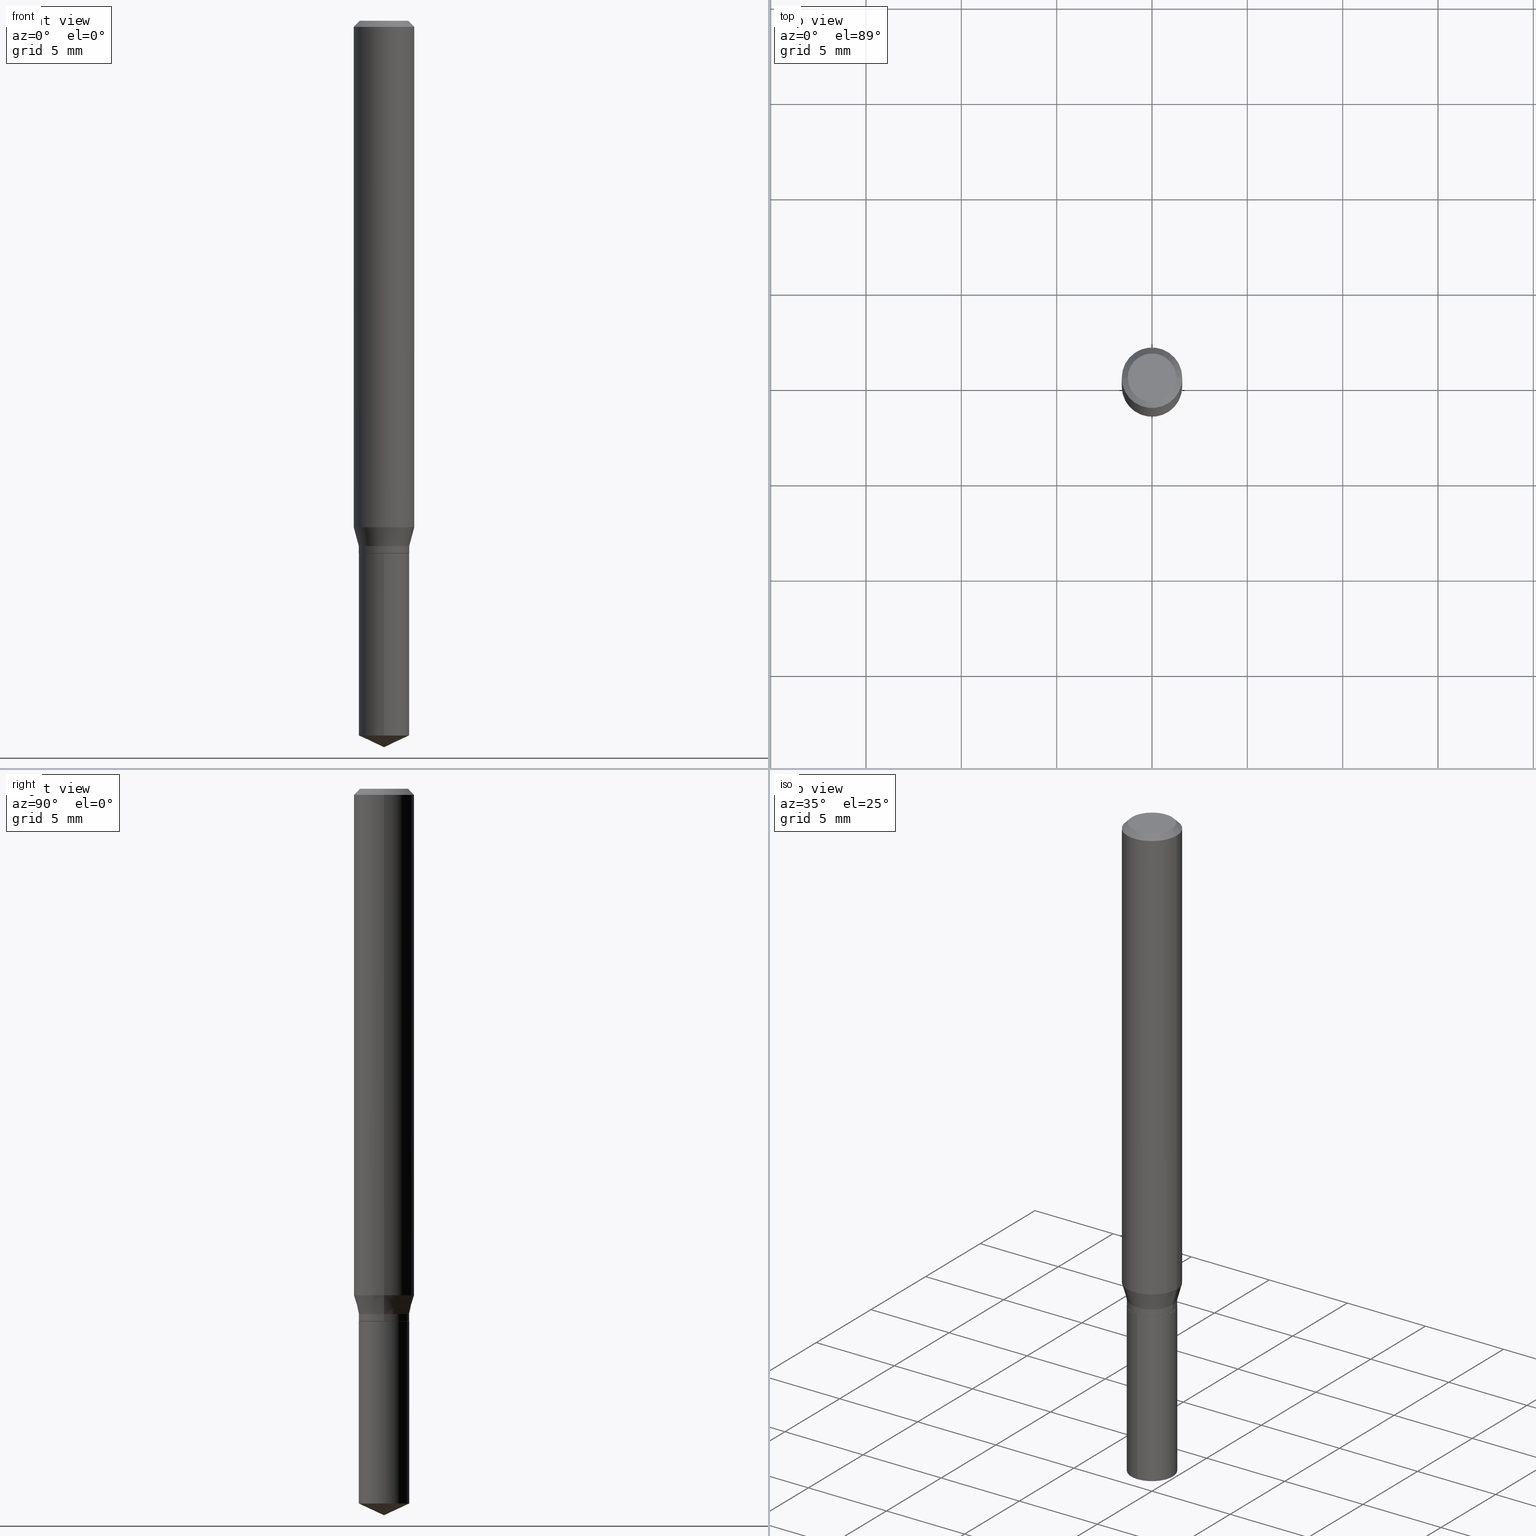
[diagram: canonical four-view strip — front | top / right | iso, engineering-drawing reading convention]
A machine part, canonical four-view strip (front | top / right | iso — engineering-drawing reading convention). The complete STEP part file that produces these views, byte-faithful:
ISO-10303-21;
HEADER;
FILE_DESCRIPTION (( 'STEP AP203' ),
    '1' );
FILE_NAME ('07213.STEP',
    '2024-04-23T20:01:57',
    ( '' ),
    ( '' ),
    'SwSTEP 2.0',
    'SolidWorks 2023',
    '' );
FILE_SCHEMA (( 'CONFIG_CONTROL_DESIGN' ));
ENDSEC;

DATA;
#1 = DIRECTION ( 'NONE',  ( 1.000000000000000000, -6.982962677686268288E-15, 0.000000000000000000 ) ) ;
#2 = ORIENTED_EDGE ( 'NONE', *, *, #466, .T. ) ;
#3 = AXIS2_PLACEMENT_3D ( 'NONE', #196, #379, #6 ) ;
#4 = CC_DESIGN_APPROVAL ( #225, ( #401 ) ) ;
#5 = DIRECTION ( 'NONE',  ( -2.445399690415121530E-29, 3.491580316559632610E-15, 1.000000000000000000 ) ) ;
#6 = DIRECTION ( 'NONE',  ( -6.982962677686266711E-15, -1.000000000000000000, 2.619221470435534958E-15 ) ) ;
#7 = ORIENTED_EDGE ( 'NONE', *, *, #354, .T. ) ;
#8 = CARTESIAN_POINT ( 'NONE',  ( 3.608708469328962837E-29, -5.152353543440113099E-15, -1.475682055627217215 ) ) ;
#9 = EDGE_CURVE ( 'NONE', #467, #231, #50, .T. ) ;
#10 = AXIS2_PLACEMENT_3D ( 'NONE', #443, #339, #481 ) ;
#11 = AXIS2_PLACEMENT_3D ( 'NONE', #322, #168, #15 ) ;
#12 = ORIENTED_EDGE ( 'NONE', *, *, #273, .T. ) ;
#13 = EDGE_LOOP ( 'NONE', ( #95, #93, #461, #59 ) ) ;
#14 = EDGE_CURVE ( 'NONE', #307, #299, #233, .T. ) ;
#15 = DIRECTION ( 'NONE',  ( -1.000000000000000000, 6.982962677686265922E-15, -4.876176775795935793E-29 ) ) ;
#16 = ORIENTED_EDGE ( 'NONE', *, *, #158, .T. ) ;
#17 = VECTOR ( 'NONE', #261, 39.37007874015748854 ) ;
#18 = AXIS2_PLACEMENT_3D ( 'NONE', #325, #124, #317 ) ;
#19 = ORIENTED_EDGE ( 'NONE', *, *, #347, .F. ) ;
#20 = CARTESIAN_POINT ( 'NONE',  ( 2.651866373427162025E-29, -3.786162363841507612E-15, -1.084400000000000031 ) ) ;
#21 = ORIENTED_EDGE ( 'NONE', *, *, #383, .T. ) ;
#22 = PERSON_AND_ORGANIZATION_ROLE ( 'design_supplier' ) ;
#23 = LINE ( 'NONE', #289, #57 ) ;
#24 = ADVANCED_FACE ( 'NONE', ( #315 ), #400, .T. ) ;
#25 = VECTOR ( 'NONE', #425, 39.37007874015748143 ) ;
#26 = DIRECTION ( 'NONE',  ( 1.000000000000000000, -6.982962677686266711E-15, 4.876176775795935793E-29 ) ) ;
#27 = APPROVAL_STATUS ( 'not_yet_approved' ) ;
#28 = FACE_OUTER_BOUND ( 'NONE', #201, .T. ) ;
#29 = PERSON_AND_ORGANIZATION ( #205, #456 ) ;
#30 = CARTESIAN_POINT ( 'NONE',  ( 2.690015686803650369E-29, -3.840629472727460101E-15, -1.100000000000000089 ) ) ;
#31 = COORDINATED_UNIVERSAL_TIME_OFFSET ( 5, 0, .BEHIND. ) ;
#32 = ADVANCED_FACE ( 'NONE', ( #130 ), #210, .T. ) ;
#33 = CARTESIAN_POINT ( 'NONE',  ( 0.000000000000000000, 0.000000000000000000, 0.000000000000000000 ) ) ;
#34 = LOCAL_TIME ( 16, 1, 57.00000000000000000, #31 ) ;
#35 = DIRECTION ( 'NONE',  ( -2.445468806185136597E-29, 3.491481338843145583E-15, 1.000000000000000000 ) ) ;
#36 = CARTESIAN_POINT ( 'NONE',  ( 2.688792952400557567E-29, -3.838883732058038598E-15, -1.099499999999999922 ) ) ;
#37 = ORIENTED_EDGE ( 'NONE', *, *, #313, .T. ) ;
#38 = APPROVAL ( #331, 'UNSPECIFIED' ) ;
#39 = CARTESIAN_POINT ( 'NONE',  ( 0.000000000000000000, 0.000000000000000000, 0.000000000000000000 ) ) ;
#40 = ORIENTED_EDGE ( 'NONE', *, *, #398, .F. ) ;
#41 = CIRCLE ( 'NONE', #418, 0.05215000000000000191 ) ;
#42 = DIRECTION ( 'NONE',  ( 1.000000000000000000, -6.982962677686266711E-15, 0.000000000000000000 ) ) ;
#43 = ORIENTED_EDGE ( 'NONE', *, *, #341, .T. ) ;
#44 = CARTESIAN_POINT ( 'NONE',  ( -3.641615036413025703E-16, -0.05215000000000513669, -1.475682055627216993 ) ) ;
#45 = ORIENTED_EDGE ( 'NONE', *, *, #369, .T. ) ;
#46 = CC_DESIGN_PERSON_AND_ORGANIZATION_ASSIGNMENT ( #403, #22, ( #401 ) ) ;
#47 = CARTESIAN_POINT ( 'NONE',  ( 2.651866373427162025E-29, -3.786162363841507612E-15, -1.084400000000000031 ) ) ;
#48 = AXIS2_PLACEMENT_3D ( 'NONE', #150, #476, #297 ) ;
#49 = CIRCLE ( 'NONE', #241, 0.06250000000000000000 ) ;
#50 = CIRCLE ( 'NONE', #393, 0.05215000000000000191 ) ;
#51 = FACE_OUTER_BOUND ( 'NONE', #243, .T. ) ;
#52 = CARTESIAN_POINT ( 'NONE',  ( -9.260740279983036507E-28, 1.322265303911854087E-13, 37.87007874015748143 ) ) ;
#53 = EDGE_CURVE ( 'NONE', #382, #169, #300, .T. ) ;
#54 = LINE ( 'NONE', #465, #338 ) ;
#55 = EDGE_LOOP ( 'NONE', ( #343, #177 ) ) ;
#56 = EDGE_LOOP ( 'NONE', ( #80, #396 ) ) ;
#57 = VECTOR ( 'NONE', #368, 39.37007874015748143 ) ;
#58 = LINE ( 'NONE', #89, #25 ) ;
#59 = ORIENTED_EDGE ( 'NONE', *, *, #327, .F. ) ;
#60 = DIRECTION ( 'NONE',  ( 0.000000000000000000, 0.000000000000000000, 1.000000000000000000 ) ) ;
#61 = EDGE_CURVE ( 'NONE', #125, #115, #479, .T. ) ;
#62 = CARTESIAN_POINT ( 'NONE',  ( 3.056836007731442729E-31, -4.364351673553962300E-17, -0.01250000000000008916 ) ) ;
#63 = PERSON_AND_ORGANIZATION ( #205, #456 ) ;
#64 = PRODUCT_RELATED_PRODUCT_CATEGORY ( 'detail', '', ( #324 ) ) ;
#65 = FACE_OUTER_BOUND ( 'NONE', #429, .T. ) ;
#66 = DATE_TIME_ROLE ( 'creation_date' ) ;
#67 = LOCAL_TIME ( 16, 1, 57.00000000000000000, #472 ) ;
#68 = CARTESIAN_POINT ( 'NONE',  ( 0.06250000000000000000, -4.800786840909313294E-16, -0.01250000000000008916 ) ) ;
#69 = EDGE_CURVE ( 'NONE', #121, #135, #334, .T. ) ;
#70 = MECHANICAL_CONTEXT ( 'NONE', #321, 'mechanical' ) ;
#71 = DIRECTION ( 'NONE',  ( 1.000000000000000000, -6.982962677686266711E-15, 4.876176775795935793E-29 ) ) ;
#72 = CALENDAR_DATE ( 2024, 23, 4 ) ;
#73 = CARTESIAN_POINT ( 'NONE',  ( -0.05215000000000000191, -3.415614327142614760E-15, -1.084400000000000031 ) ) ;
#74 = AXIS2_PLACEMENT_3D ( 'NONE', #287, #367, #71 ) ;
#75 = DIRECTION ( 'NONE',  ( -6.982962677686266711E-15, -1.000000000000000000, 5.238442940871069917E-15 ) ) ;
#76 = ADVANCED_FACE ( 'NONE', ( #371 ), #409, .T. ) ;
#77 = CARTESIAN_POINT ( 'NONE',  ( 3.608708469328962837E-29, -5.152353543440113099E-15, -1.475682055627217215 ) ) ;
#78 = ORIENTED_EDGE ( 'NONE', *, *, #347, .T. ) ;
#79 = DIRECTION ( 'NONE',  ( 1.000000000000000000, -6.982962677686266711E-15, 4.876176775795935793E-29 ) ) ;
#80 = ORIENTED_EDGE ( 'NONE', *, *, #207, .T. ) ;
#81 = DIRECTION ( 'NONE',  ( -6.328713451373382000E-15, -0.9063077870366501587, 0.4226182617406989972 ) ) ;
#82 = VECTOR ( 'NONE', #191, 39.37007874015748143 ) ;
#83 = ORIENTED_EDGE ( 'NONE', *, *, #61, .T. ) ;
#84 = CIRCLE ( 'NONE', #384, 0.04999999999999999584 ) ;
#85 = ADVANCED_FACE ( 'NONE', ( #487 ), #485, .T. ) ;
#86 = CARTESIAN_POINT ( 'NONE',  ( 3.705480366989283509E-16, 0.05214999999999615776, -1.100000000000000089 ) ) ;
#87 = ORIENTED_EDGE ( 'NONE', *, *, #490, .T. ) ;
#88 =( CONVERSION_BASED_UNIT ( 'INCH', #239 ) LENGTH_UNIT ( ) NAMED_UNIT ( #290 ) );
#89 = CARTESIAN_POINT ( 'NONE',  ( 0.06250000000000000000, -4.724246415962603826E-16, -0.01250000000000008916 ) ) ;
#90 = DIRECTION ( 'NONE',  ( -2.445468806185136597E-29, 3.491481338843145583E-15, 1.000000000000000000 ) ) ;
#91 = VECTOR ( 'NONE', #142, 39.37007874015748143 ) ;
#92 =( LENGTH_UNIT ( ) NAMED_UNIT ( * ) SI_UNIT ( $, .METRE. ) );
#93 = ORIENTED_EDGE ( 'NONE', *, *, #153, .T. ) ;
#94 = DIRECTION ( 'NONE',  ( 0.2588190451025216277, 1.565188264969619995E-15, 0.9659258262890679791 ) ) ;
#95 = ORIENTED_EDGE ( 'NONE', *, *, #364, .T. ) ;
#96 = EDGE_LOOP ( 'NONE', ( #229, #209, #351, #21 ) ) ;
#97 = ADVANCED_BREP_SHAPE_REPRESENTATION ( '07213', ( #468, #477, #114 ), #264 ) ;
#98 = VECTOR ( 'NONE', #408, 39.37007874015748143 ) ;
#99 = CC_DESIGN_SECURITY_CLASSIFICATION ( #413, ( #401 ) ) ;
#100 = COORDINATED_UNIVERSAL_TIME_OFFSET ( 5, 0, .BEHIND. ) ;
#101 = ORIENTED_EDGE ( 'NONE', *, *, #53, .T. ) ;
#102 = APPROVAL_ROLE ( '' ) ;
#103 = PLANE ( 'NONE',  #137 ) ;
#104 = ADVANCED_FACE ( 'NONE', ( #372 ), #474, .T. ) ;
#105 = LINE ( 'NONE', #296, #180 ) ;
#106 = CIRCLE ( 'NONE', #475, 0.05215000000000000191 ) ;
#107 = DIRECTION ( 'NONE',  ( -1.000000000000000000, 6.982962677686266711E-15, 0.000000000000000000 ) ) ;
#108 = EDGE_CURVE ( 'NONE', #231, #420, #217, .T. ) ;
#109 = PERSON_AND_ORGANIZATION ( #205, #456 ) ;
#110 = CARTESIAN_POINT ( 'NONE',  ( 0.000000000000000000, 0.000000000000000000, 0.000000000000000000 ) ) ;
#111 = CARTESIAN_POINT ( 'NONE',  ( 2.690015686803650369E-29, -3.840629472727460101E-15, -1.100000000000000089 ) ) ;
#112 = ADVANCED_FACE ( 'NONE', ( #28 ), #318, .T. ) ;
#113 = CARTESIAN_POINT ( 'NONE',  ( 3.668099535622682155E-29, -5.237370474839448718E-15, -1.500000000000000222 ) ) ;
#114 = AXIS2_PLACEMENT_3D ( 'NONE', #187, #60, #260 ) ;
#115 = VERTEX_POINT ( 'NONE', #258 ) ;
#116 = CARTESIAN_POINT ( 'NONE',  ( 2.690015686803650369E-29, -3.840629472727460101E-15, -1.100000000000000089 ) ) ;
#117 = DIRECTION ( 'NONE',  ( -2.445399690415121530E-29, 3.491580316559632610E-15, 1.000000000000000000 ) ) ;
#118 = ADVANCED_FACE ( 'NONE', ( #65 ), #441, .T. ) ;
#119 = CARTESIAN_POINT ( 'NONE',  ( 0.05215000000000000191, -3.641615036413388086E-16, 2.542926188577580569E-30 ) ) ;
#120 = CIRCLE ( 'NONE', #308, 0.05215000000000000191 ) ;
#121 = VERTEX_POINT ( 'NONE', #406 ) ;
#122 = LOCAL_TIME ( 16, 1, 57.00000000000000000, #373 ) ;
#123 = EDGE_CURVE ( 'NONE', #422, #307, #179, .T. ) ;
#124 = DIRECTION ( 'NONE',  ( -2.445468806185136597E-29, 3.491481338843145583E-15, 1.000000000000000000 ) ) ;
#125 = VERTEX_POINT ( 'NONE', #444 ) ;
#126 = DIRECTION ( 'NONE',  ( -1.000000000000000000, 6.982962677686266711E-15, 0.000000000000000000 ) ) ;
#127 = EDGE_LOOP ( 'NONE', ( #312, #237, #152, #238 ) ) ;
#128 = CC_DESIGN_PERSON_AND_ORGANIZATION_ASSIGNMENT ( #248, #482, ( #401 ) ) ;
#129 = CARTESIAN_POINT ( 'NONE',  ( 3.056836007731442729E-31, -4.364351673553962300E-17, -0.01250000000000008916 ) ) ;
#130 = FACE_OUTER_BOUND ( 'NONE', #454, .T. ) ;
#131 = CONICAL_SURFACE ( 'NONE', #257, 0.05215000000000000191, 0.2617993877991502960 ) ;
#132 = DIRECTION ( 'NONE',  ( -2.445468806185136597E-29, 3.491481338843145583E-15, 1.000000000000000000 ) ) ;
#133 = EDGE_LOOP ( 'NONE', ( #427, #12, #7, #323 ) ) ;
#134 = CARTESIAN_POINT ( 'NONE',  ( 2.557405920255531666E-29, -3.651297871326509428E-15, -1.045773274141661879 ) ) ;
#135 = VERTEX_POINT ( 'NONE', #68 ) ;
#136 = ORIENTED_EDGE ( 'NONE', *, *, #292, .F. ) ;
#137 = AXIS2_PLACEMENT_3D ( 'NONE', #184, #332, #149 ) ;
#138 = VECTOR ( 'NONE', #263, 39.37007874015748143 ) ;
#139 = CARTESIAN_POINT ( 'NONE',  ( 3.705480366989190325E-16, 0.05214999999999615776, -1.100000000000000089 ) ) ;
#140 = ADVANCED_FACE ( 'NONE', ( #436 ), #186, .T. ) ;
#141 = CALENDAR_DATE ( 2024, 23, 4 ) ;
#142 = DIRECTION ( 'NONE',  ( -2.445468806185136877E-29, 3.491481338843145188E-15, 1.000000000000000000 ) ) ;
#143 = UNCERTAINTY_MEASURE_WITH_UNIT (LENGTH_MEASURE( 1.000000000000000082E-05 ), #88, 'distance_accuracy_value', 'NONE');
#144 = CARTESIAN_POINT ( 'NONE',  ( 0.06250000000000006939, -4.364351673553921624E-16, 3.047610484872463374E-30 ) ) ;
#145 = AXIS2_PLACEMENT_3D ( 'NONE', #432, #90, #394 ) ;
#146 = CALENDAR_DATE ( 2024, 23, 4 ) ;
#147 = CC_DESIGN_APPROVAL ( #386, ( #316 ) ) ;
#148 = CONICAL_SURFACE ( 'NONE', #18, 0.05164999999999999453, 0.7853981633974141952 ) ;
#149 = DIRECTION ( 'NONE',  ( 6.982962677686265922E-15, 1.000000000000000000, -3.491580316559632610E-15 ) ) ;
#150 = CARTESIAN_POINT ( 'NONE',  ( 2.690015686803650369E-29, -3.840629472727460101E-15, -1.100000000000000089 ) ) ;
#151 = CARTESIAN_POINT ( 'NONE',  ( -0.05164999999999999453, -3.473634149707368542E-15, -1.100000000000000089 ) ) ;
#152 = ORIENTED_EDGE ( 'NONE', *, *, #410, .F. ) ;
#153 = EDGE_CURVE ( 'NONE', #167, #231, #23, .T. ) ;
#154 = AXIS2_PLACEMENT_3D ( 'NONE', #298, #306, #414 ) ;
#155 = CARTESIAN_POINT ( 'NONE',  ( 2.690015686803650369E-29, -3.840629472727460101E-15, -1.100000000000000089 ) ) ;
#156 = VECTOR ( 'NONE', #234, 39.37007874015748143 ) ;
#157 = ORIENTED_EDGE ( 'NONE', *, *, #69, .T. ) ;
#158 = EDGE_CURVE ( 'NONE', #458, #125, #163, .T. ) ;
#159 = CARTESIAN_POINT ( 'NONE',  ( 3.668099535622682715E-29, -5.237370474839449507E-15, -1.500000000000000222 ) ) ;
#160 = DIRECTION ( 'NONE',  ( -2.445399690415121530E-29, 3.491580316559632610E-15, 1.000000000000000000 ) ) ;
#161 = ORIENTED_EDGE ( 'NONE', *, *, #108, .F. ) ;
#162 = DIRECTION ( 'NONE',  ( -2.445468806185136597E-29, 3.491481338843145583E-15, 1.000000000000000000 ) ) ;
#163 = CIRCLE ( 'NONE', #337, 0.05164999999999999453 ) ;
#164 = ORIENTED_EDGE ( 'NONE', *, *, #216, .T. ) ;
#165 = VECTOR ( 'NONE', #345, 39.37007874015748854 ) ;
#166 = DIRECTION ( 'NONE',  ( 1.000000000000000000, -6.982962677686266711E-15, 0.000000000000000000 ) ) ;
#167 = VERTEX_POINT ( 'NONE', #405 ) ;
#168 = DIRECTION ( 'NONE',  ( 2.438088387897960049E-29, -3.491481338843145188E-15, -1.000000000000000000 ) ) ;
#169 = VERTEX_POINT ( 'NONE', #188 ) ;
#170 = DIRECTION ( 'NONE',  ( -2.445468806185136597E-29, 3.491481338843145583E-15, 1.000000000000000000 ) ) ;
#171 = DIRECTION ( 'NONE',  ( -2.445399690415121530E-29, 3.491580316559632610E-15, 1.000000000000000000 ) ) ;
#172 = AXIS2_PLACEMENT_3D ( 'NONE', #155, #303, #389 ) ;
#173 = ADVANCED_FACE ( 'NONE', ( #336 ), #103, .F. ) ;
#174 = ORIENTED_EDGE ( 'NONE', *, *, #327, .T. ) ;
#175 = CARTESIAN_POINT ( 'NONE',  ( 0.05215000000000000191, -4.150323867482845879E-15, -1.084400000000000031 ) ) ;
#176 = CC_DESIGN_DATE_AND_TIME_ASSIGNMENT ( #178, #291, ( #413 ) ) ;
#177 = ORIENTED_EDGE ( 'NONE', *, *, #158, .F. ) ;
#178 = DATE_AND_TIME ( #442, #34 ) ;
#179 = LINE ( 'NONE', #139, #98 ) ;
#180 = VECTOR ( 'NONE', #254, 39.37007874015748854 ) ;
#181 = AXIS2_PLACEMENT_3D ( 'NONE', #8, #453, #197 ) ;
#182 = CLOSED_SHELL ( 'NONE', ( #118, #32, #251, #228, #173 ) ) ;
#183 = SECURITY_CLASSIFICATION_LEVEL ( 'unclassified' ) ;
#184 = CARTESIAN_POINT ( 'NONE',  ( 2.690015686803650369E-29, -3.840629472727460101E-15, -1.100000000000000089 ) ) ;
#185 = DATE_AND_TIME ( #72, #376 ) ;
#186 = CYLINDRICAL_SURFACE ( 'NONE', #74, 0.05215000000000000191 ) ;
#187 = CARTESIAN_POINT ( 'NONE',  ( 0.000000000000000000, 0.000000000000000000, 0.000000000000000000 ) ) ;
#188 = CARTESIAN_POINT ( 'NONE',  ( 0.04999999999999999584, -4.077247707424184705E-16, -1.592040838888913461E-18 ) ) ;
#189 = APPROVAL_ROLE ( '' ) ;
#190 = APPROVAL_PERSON_ORGANIZATION ( #250, #225, #102 ) ;
#191 = DIRECTION ( 'NONE',  ( -0.2588190451025216277, 5.211531920934551831E-15, 0.9659258262890679791 ) ) ;
#192 = DIRECTION ( 'NONE',  ( -6.982962677686266711E-15, -1.000000000000000000, 2.619221470435534958E-15 ) ) ;
#193 = EDGE_LOOP ( 'NONE', ( #246, #87, #174, #417 ) ) ;
#194 = PLANE ( 'NONE',  #154 ) ;
#195 = EDGE_LOOP ( 'NONE', ( #434, #78, #272 ) ) ;
#196 = CARTESIAN_POINT ( 'NONE',  ( 2.690015686803650369E-29, -3.840629472727460101E-15, -1.100000000000000089 ) ) ;
#197 = DIRECTION ( 'NONE',  ( -6.982962677686266711E-15, -1.000000000000000000, 5.238442940871069917E-15 ) ) ;
#198 = CARTESIAN_POINT ( 'NONE',  ( 3.893286209682126177E-47, -5.558580879666067980E-33, -1.592040838891559689E-18 ) ) ;
#199 = AXIS2_PLACEMENT_3D ( 'NONE', #269, #5, #271 ) ;
#200 = EDGE_CURVE ( 'NONE', #346, #422, #105, .T. ) ;
#201 = EDGE_LOOP ( 'NONE', ( #45, #245, #240, #282 ) ) ;
#202 = CARTESIAN_POINT ( 'NONE',  ( 3.056836007731442729E-31, -4.364351673553962300E-17, -0.01250000000000008916 ) ) ;
#203 = VERTEX_POINT ( 'NONE', #348 ) ;
#204 = CARTESIAN_POINT ( 'NONE',  ( -0.06250000000000012490, -3.207208661476446023E-15, -1.045773274141661879 ) ) ;
#205 = PERSON ( 'UNSPECIFIED', 'UNSPECIFIED', 'UNSPECIFIED', ('UNSPECIFIED'), ('UNSPECIFIED'), ('UNSPECIFIED') ) ;
#206 = DIRECTION ( 'NONE',  ( -6.982962677686266711E-15, -1.000000000000000000, 2.619221470435534958E-15 ) ) ;
#207 = EDGE_CURVE ( 'NONE', #299, #307, #120, .T. ) ;
#208 = PLANE ( 'NONE',  #11 ) ;
#209 = ORIENTED_EDGE ( 'NONE', *, *, #53, .F. ) ;
#210 = CONICAL_SURFACE ( 'NONE', #407, 84.42940631927483253, 1.134464013796318227 ) ;
#211 = VECTOR ( 'NONE', #419, 39.37007874015748143 ) ;
#212 = ADVANCED_FACE ( 'NONE', ( #385 ), #194, .F. ) ;
#213 = DIRECTION ( 'NONE',  ( 1.000000000000000000, -6.982962677686264344E-15, 0.000000000000000000 ) ) ;
#214 = ORIENTED_EDGE ( 'NONE', *, *, #450, .T. ) ;
#215 = COORDINATED_UNIVERSAL_TIME_OFFSET ( 5, 0, .BEHIND. ) ;
#216 = EDGE_CURVE ( 'NONE', #135, #203, #483, .T. ) ;
#217 = LINE ( 'NONE', #73, #82 ) ;
#218 = DIRECTION ( 'NONE',  ( 2.445468806185136597E-29, -3.491481338843145583E-15, -1.000000000000000000 ) ) ;
#219 = CONICAL_SURFACE ( 'NONE', #199, 84.42940631927483253, 1.134464013796318227 ) ;
#220 = CARTESIAN_POINT ( 'NONE',  ( 0.05164999999999999453, -4.201299495029956149E-15, -1.100000000000000089 ) ) ;
#221 = DIRECTION ( 'NONE',  ( 1.000000000000000000, -6.982962677686269077E-15, 0.000000000000000000 ) ) ;
#222 = PERSON_AND_ORGANIZATION_ROLE ( 'creator' ) ;
#223 = DIRECTION ( 'NONE',  ( -2.445468806185136597E-29, 3.491481338843145583E-15, 1.000000000000000000 ) ) ;
#224 = AXIS2_PLACEMENT_3D ( 'NONE', #110, #438, #293 ) ;
#225 = APPROVAL ( #366, 'UNSPECIFIED' ) ;
#226 = CYLINDRICAL_SURFACE ( 'NONE', #344, 0.06250000000000006939 ) ;
#227 = CARTESIAN_POINT ( 'NONE',  ( -3.641615036413119380E-16, -0.05215000000000383912, -1.099999999999999867 ) ) ;
#228 = ADVANCED_FACE ( 'NONE', ( #415 ), #310, .T. ) ;
#229 = ORIENTED_EDGE ( 'NONE', *, *, #430, .F. ) ;
#230 = CARTESIAN_POINT ( 'NONE',  ( 2.651866373427162025E-29, -3.786162363841507612E-15, -1.084400000000000031 ) ) ;
#231 = VERTEX_POINT ( 'NONE', #411 ) ;
#232 = EDGE_CURVE ( 'NONE', #249, #422, #256, .T. ) ;
#233 = CIRCLE ( 'NONE', #455, 0.05215000000000000191 ) ;
#234 = DIRECTION ( 'NONE',  ( -2.445399690415121810E-29, 3.491580316559632610E-15, 1.000000000000000000 ) ) ;
#235 = CONICAL_SURFACE ( 'NONE', #424, 0.06250000000000000000, 0.7853981633974449483 ) ;
#236 = CARTESIAN_POINT ( 'NONE',  ( -0.06250000000000006939, 4.440892098500631092E-16, -3.074334431409319267E-30 ) ) ;
#237 = ORIENTED_EDGE ( 'NONE', *, *, #108, .T. ) ;
#238 = ORIENTED_EDGE ( 'NONE', *, *, #466, .F. ) ;
#239 = LENGTH_MEASURE_WITH_UNIT ( LENGTH_MEASURE( 0.02539999999999999897 ), #92 );
#240 = ORIENTED_EDGE ( 'NONE', *, *, #364, .F. ) ;
#241 = AXIS2_PLACEMENT_3D ( 'NONE', #202, #399, #166 ) ;
#242 =( NAMED_UNIT ( * ) SI_UNIT ( $, .STERADIAN. ) SOLID_ANGLE_UNIT ( ) );
#243 = EDGE_LOOP ( 'NONE', ( #402, #305, #164, #40 ) ) ;
#244 = ADVANCED_FACE ( 'NONE', ( #304 ), #226, .T. ) ;
#245 = ORIENTED_EDGE ( 'NONE', *, *, #292, .T. ) ;
#246 = ORIENTED_EDGE ( 'NONE', *, *, #153, .F. ) ;
#247 = VECTOR ( 'NONE', #94, 39.37007874015748143 ) ;
#248 = PERSON_AND_ORGANIZATION ( #205, #456 ) ;
#249 = VERTEX_POINT ( 'NONE', #44 ) ;
#250 = PERSON_AND_ORGANIZATION ( #205, #456 ) ;
#251 = ADVANCED_FACE ( 'NONE', ( #340 ), #219, .T. ) ;
#252 = DIRECTION ( 'NONE',  ( -2.445468806185136597E-29, 3.491481338843145583E-15, 1.000000000000000000 ) ) ;
#253 = PERSON_AND_ORGANIZATION ( #205, #456 ) ;
#254 = DIRECTION ( 'NONE',  ( 6.439704144417036664E-15, 0.9063077870366530453, 0.4226182617406927244 ) ) ;
#255 = DESIGN_CONTEXT ( 'detailed design', #268, 'design' ) ;
#256 = CIRCLE ( 'NONE', #412, 0.05215000000000000191 ) ;
#257 = AXIS2_PLACEMENT_3D ( 'NONE', #230, #488, #267 ) ;
#258 = CARTESIAN_POINT ( 'NONE',  ( 0.05215000000000000191, -4.203045235699377653E-15, -1.099499999999999922 ) ) ;
#259 = ADVANCED_FACE ( 'NONE', ( #448 ), #131, .T. ) ;
#260 = DIRECTION ( 'NONE',  ( 1.000000000000000000, 0.000000000000000000, 0.000000000000000000 ) ) ;
#261 = DIRECTION ( 'NONE',  ( 0.7071067811865232589, -2.468850131082003836E-15, 0.7071067811865715536 ) ) ;
#262 = CC_DESIGN_PERSON_AND_ORGANIZATION_ASSIGNMENT ( #253, #222, ( #316 ) ) ;
#263 = DIRECTION ( 'NONE',  ( -2.445468806185136877E-29, 3.491481338843145188E-15, 1.000000000000000000 ) ) ;
#264 =( GEOMETRIC_REPRESENTATION_CONTEXT ( 3 ) GLOBAL_UNCERTAINTY_ASSIGNED_CONTEXT ( ( #143 ) ) GLOBAL_UNIT_ASSIGNED_CONTEXT ( ( #88, #392, #242 ) ) REPRESENTATION_CONTEXT ( 'NONE', 'WORKASPACE' ) );
#265 = LINE ( 'NONE', #227, #156 ) ;
#266 = ORIENTED_EDGE ( 'NONE', *, *, #200, .T. ) ;
#267 = DIRECTION ( 'NONE',  ( 1.000000000000000000, -6.982962677686268288E-15, 0.000000000000000000 ) ) ;
#268 = APPLICATION_CONTEXT ( 'configuration controlled 3d designs of mechanical parts and assemblies' ) ;
#269 = CARTESIAN_POINT ( 'NONE',  ( -9.260740279983036507E-28, 1.322265303911854087E-13, 37.87007874015748143 ) ) ;
#270 = APPROVAL_PERSON_ORGANIZATION ( #478, #386, #335 ) ;
#271 = DIRECTION ( 'NONE',  ( -6.982962677686267499E-15, -1.000000000000000000, 3.520397390770433360E-15 ) ) ;
#272 = ORIENTED_EDGE ( 'NONE', *, *, #273, .F. ) ;
#273 = EDGE_CURVE ( 'NONE', #422, #249, #277, .T. ) ;
#274 = CARTESIAN_POINT ( 'NONE',  ( -0.05164999999999999453, -3.470984922533256947E-15, -1.100000000000000089 ) ) ;
#275 = CARTESIAN_POINT ( 'NONE',  ( 0.05215000000000000191, -4.150323867482845879E-15, -1.084400000000000031 ) ) ;
#276 = DIRECTION ( 'NONE',  ( -2.445468806185136597E-29, 3.491481338843145583E-15, 1.000000000000000000 ) ) ;
#277 = CIRCLE ( 'NONE', #181, 0.05215000000000000191 ) ;
#278 = ORIENTED_EDGE ( 'NONE', *, *, #490, .F. ) ;
#279 = APPROVAL_PERSON_ORGANIZATION ( #29, #38, #189 ) ;
#280 = CARTESIAN_POINT ( 'NONE',  ( -0.04999999999999999584, 3.709698922520826725E-16, -1.592040838894077649E-18 ) ) ;
#281 = CC_DESIGN_DATE_AND_TIME_ASSIGNMENT ( #435, #66, ( #316 ) ) ;
#282 = ORIENTED_EDGE ( 'NONE', *, *, #61, .F. ) ;
#283 = DIRECTION ( 'NONE',  ( -2.445468806185136597E-29, 3.491481338843145583E-15, 1.000000000000000000 ) ) ;
#284 = ORIENTED_EDGE ( 'NONE', *, *, #69, .F. ) ;
#285 = DATE_AND_TIME ( #333, #446 ) ;
#286 = ORIENTED_EDGE ( 'NONE', *, *, #207, .F. ) ;
#287 = CARTESIAN_POINT ( 'NONE',  ( 0.000000000000000000, 0.000000000000000000, 0.000000000000000000 ) ) ;
#288 = DATE_AND_TIME ( #141, #67 ) ;
#289 = CARTESIAN_POINT ( 'NONE',  ( -0.05215000000000000191, 3.705480366988922605E-16, -2.565224649567933448E-30 ) ) ;
#290 = DIMENSIONAL_EXPONENTS ( 1.000000000000000000, 0.000000000000000000, 0.000000000000000000, 0.000000000000000000, 0.000000000000000000, 0.000000000000000000, 0.000000000000000000 ) ;
#291 = DATE_TIME_ROLE ( 'classification_date' ) ;
#292 = EDGE_CURVE ( 'NONE', #458, #167, #350, .T. ) ;
#293 = DIRECTION ( 'NONE',  ( 1.000000000000000000, -6.982962677686266711E-15, 4.876176775795935793E-29 ) ) ;
#294 = AXIS2_PLACEMENT_3D ( 'NONE', #311, #359, #213 ) ;
#295 = APPROVAL_DATE_TIME ( #285, #225 ) ;
#296 = CARTESIAN_POINT ( 'NONE',  ( 3.668252923656895710E-29, -5.237152723863177100E-15, -1.500000000000000222 ) ) ;
#297 = DIRECTION ( 'NONE',  ( -6.982962677686266711E-15, -1.000000000000000000, 2.619221470435534958E-15 ) ) ;
#298 = CARTESIAN_POINT ( 'NONE',  ( 2.690015686803650369E-29, -3.840629472727460101E-15, -1.100000000000000089 ) ) ;
#299 = VERTEX_POINT ( 'NONE', #381 ) ;
#300 = CIRCLE ( 'NONE', #10, 0.04999999999999999584 ) ;
#301 = CC_DESIGN_PERSON_AND_ORGANIZATION_ASSIGNMENT ( #63, #437, ( #413 ) ) ;
#302 = CIRCLE ( 'NONE', #172, 0.05164999999999999453 ) ;
#303 = DIRECTION ( 'NONE',  ( -2.445468806185136597E-29, 3.491481338843145583E-15, 1.000000000000000000 ) ) ;
#304 = FACE_OUTER_BOUND ( 'NONE', #489, .T. ) ;
#305 = ORIENTED_EDGE ( 'NONE', *, *, #430, .T. ) ;
#306 = DIRECTION ( 'NONE',  ( -2.438088387897960049E-29, 3.491481338843145188E-15, 1.000000000000000000 ) ) ;
#307 = VERTEX_POINT ( 'NONE', #86 ) ;
#308 = AXIS2_PLACEMENT_3D ( 'NONE', #116, #117, #192 ) ;
#309 = CC_DESIGN_APPROVAL ( #38, ( #413 ) ) ;
#310 = CYLINDRICAL_SURFACE ( 'NONE', #3, 0.05215000000000000191 ) ;
#311 = CARTESIAN_POINT ( 'NONE',  ( 2.557405920255531666E-29, -3.651297871326509428E-15, -1.045773274141661879 ) ) ;
#312 = ORIENTED_EDGE ( 'NONE', *, *, #9, .T. ) ;
#313 = EDGE_CURVE ( 'NONE', #169, #382, #84, .T. ) ;
#314 = CARTESIAN_POINT ( 'NONE',  ( 2.688792952400557567E-29, -3.838883732058038598E-15, -1.099499999999999922 ) ) ;
#315 = FACE_OUTER_BOUND ( 'NONE', #358, .T. ) ;
#316 = PRODUCT_DEFINITION ( 'UNKNOWN', '', #401, #255 ) ;
#317 = DIRECTION ( 'NONE',  ( 1.000000000000000000, -6.982962677686269077E-15, 0.000000000000000000 ) ) ;
#318 = CONICAL_SURFACE ( 'NONE', #390, 0.05164999999999999453, 0.7853981633974141952 ) ;
#319 = EDGE_LOOP ( 'NONE', ( #136, #16, #83, #278 ) ) ;
#320 = VECTOR ( 'NONE', #81, 39.37007874015748143 ) ;
#321 = APPLICATION_CONTEXT ( 'configuration controlled 3d designs of mechanical parts and assemblies' ) ;
#322 = CARTESIAN_POINT ( 'NONE',  ( 1.946643104841063088E-47, -2.779290439833033990E-33, -7.960204194457798443E-19 ) ) ;
#323 = ORIENTED_EDGE ( 'NONE', *, *, #14, .F. ) ;
#324 = PRODUCT ( '07213', '07213', '', ( #70 ) ) ;
#325 = CARTESIAN_POINT ( 'NONE',  ( 2.690015686803650369E-29, -3.840629472727460101E-15, -1.100000000000000089 ) ) ;
#326 = ORIENTED_EDGE ( 'NONE', *, *, #341, .F. ) ;
#327 = EDGE_CURVE ( 'NONE', #115, #467, #457, .T. ) ;
#328 = APPROVAL_DATE_TIME ( #288, #38 ) ;
#329 = DIRECTION ( 'NONE',  ( 1.000000000000000000, -6.982962677686269077E-15, 0.000000000000000000 ) ) ;
#330 = AXIS2_PLACEMENT_3D ( 'NONE', #20, #170, #431 ) ;
#331 = APPROVAL_STATUS ( 'not_yet_approved' ) ;
#332 = DIRECTION ( 'NONE',  ( 2.445399690415121250E-29, -3.491580316559632610E-15, -1.000000000000000000 ) ) ;
#333 = CALENDAR_DATE ( 2024, 23, 4 ) ;
#334 = LINE ( 'NONE', #144, #91 ) ;
#335 = APPROVAL_ROLE ( '' ) ;
#336 = FACE_OUTER_BOUND ( 'NONE', #56, .T. ) ;
#337 = AXIS2_PLACEMENT_3D ( 'NONE', #30, #404, #221 ) ;
#338 = VECTOR ( 'NONE', #469, 39.37007874015748143 ) ;
#339 = DIRECTION ( 'NONE',  ( -2.445468806185136597E-29, 3.491481338843145583E-15, 1.000000000000000000 ) ) ;
#340 = FACE_OUTER_BOUND ( 'NONE', #195, .T. ) ;
#341 = EDGE_CURVE ( 'NONE', #420, #203, #378, .T. ) ;
#342 = DIRECTION ( 'NONE',  ( -2.445468806185136597E-29, 3.491481338843145583E-15, 1.000000000000000000 ) ) ;
#343 = ORIENTED_EDGE ( 'NONE', *, *, #369, .F. ) ;
#344 = AXIS2_PLACEMENT_3D ( 'NONE', #39, #451, #79 ) ;
#345 = DIRECTION ( 'NONE',  ( -0.7071067811865232589, 7.493145998870265808E-15, 0.7071067811865715536 ) ) ;
#346 = VERTEX_POINT ( 'NONE', #159 ) ;
#347 = EDGE_CURVE ( 'NONE', #346, #249, #445, .T. ) ;
#348 = CARTESIAN_POINT ( 'NONE',  ( -0.06250000000000000000, -1.403381484180960498E-15, -0.01250000000000008916 ) ) ;
#349 = ORIENTED_EDGE ( 'NONE', *, *, #216, .F. ) ;
#350 = LINE ( 'NONE', #151, #165 ) ;
#351 = ORIENTED_EDGE ( 'NONE', *, *, #398, .T. ) ;
#352 = DIRECTION ( 'NONE',  ( 2.445468806185136597E-29, -3.491481338843145583E-15, -1.000000000000000000 ) ) ;
#353 = ORIENTED_EDGE ( 'NONE', *, *, #383, .F. ) ;
#354 = EDGE_CURVE ( 'NONE', #249, #299, #265, .T. ) ;
#355 = CARTESIAN_POINT ( 'NONE',  ( 3.705480366989282030E-16, 0.05214999999999482549, -1.475682055627217437 ) ) ;
#356 = ORIENTED_EDGE ( 'NONE', *, *, #459, .T. ) ;
#357 = FACE_OUTER_BOUND ( 'NONE', #365, .T. ) ;
#358 = EDGE_LOOP ( 'NONE', ( #161, #356, #2, #388 ) ) ;
#359 = DIRECTION ( 'NONE',  ( -2.445468806185136597E-29, 3.491481338843145583E-15, 1.000000000000000000 ) ) ;
#360 = AXIS2_PLACEMENT_3D ( 'NONE', #387, #35, #42 ) ;
#361 = ORIENTED_EDGE ( 'NONE', *, *, #410, .T. ) ;
#362 = CIRCLE ( 'NONE', #391, 0.06250000000000012490 ) ;
#363 = DIRECTION ( 'NONE',  ( 1.000000000000000000, -6.982962677686264344E-15, 0.000000000000000000 ) ) ;
#364 = EDGE_CURVE ( 'NONE', #115, #167, #41, .T. ) ;
#365 = EDGE_LOOP ( 'NONE', ( #101, #37 ) ) ;
#366 = APPROVAL_STATUS ( 'not_yet_approved' ) ;
#367 = DIRECTION ( 'NONE',  ( -2.445468806185136597E-29, 3.491481338843145583E-15, 1.000000000000000000 ) ) ;
#368 = DIRECTION ( 'NONE',  ( -2.445468806185136877E-29, 3.491481338843145188E-15, 1.000000000000000000 ) ) ;
#369 = EDGE_CURVE ( 'NONE', #125, #458, #302, .T. ) ;
#370 = PERSON_AND_ORGANIZATION_ROLE ( 'design_owner' ) ;
#371 = FACE_OUTER_BOUND ( 'NONE', #193, .T. ) ;
#372 = FACE_OUTER_BOUND ( 'NONE', #96, .T. ) ;
#373 = COORDINATED_UNIVERSAL_TIME_OFFSET ( 5, 0, .BEHIND. ) ;
#374 = DIRECTION ( 'NONE',  ( -6.982962677686267499E-15, -1.000000000000000000, 3.520397390770433360E-15 ) ) ;
#375 = AXIS2_PLACEMENT_3D ( 'NONE', #33, #252, #26 ) ;
#376 = LOCAL_TIME ( 16, 1, 57.00000000000000000, #215 ) ;
#377 = ADVANCED_FACE ( 'NONE', ( #357 ), #208, .F. ) ;
#378 = LINE ( 'NONE', #236, #211 ) ;
#379 = DIRECTION ( 'NONE',  ( -2.445399690415121530E-29, 3.491580316559632610E-15, 1.000000000000000000 ) ) ;
#380 = ORIENTED_EDGE ( 'NONE', *, *, #232, .T. ) ;
#381 = CARTESIAN_POINT ( 'NONE',  ( -3.641615036413119380E-16, -0.05215000000000383912, -1.099999999999999867 ) ) ;
#382 = VERTEX_POINT ( 'NONE', #280 ) ;
#383 = EDGE_CURVE ( 'NONE', #203, #135, #49, .T. ) ;
#384 = AXIS2_PLACEMENT_3D ( 'NONE', #198, #162, #416 ) ;
#385 = FACE_OUTER_BOUND ( 'NONE', #55, .T. ) ;
#386 = APPROVAL ( #27, 'UNSPECIFIED' ) ;
#387 = CARTESIAN_POINT ( 'NONE',  ( 3.056836007731442729E-31, -4.364351673553962300E-17, -0.01250000000000008916 ) ) ;
#388 = ORIENTED_EDGE ( 'NONE', *, *, #450, .F. ) ;
#389 = DIRECTION ( 'NONE',  ( 1.000000000000000000, -6.982962677686269077E-15, 0.000000000000000000 ) ) ;
#390 = AXIS2_PLACEMENT_3D ( 'NONE', #111, #223, #329 ) ;
#391 = AXIS2_PLACEMENT_3D ( 'NONE', #134, #283, #363 ) ;
#392 =( NAMED_UNIT ( * ) PLANE_ANGLE_UNIT ( ) SI_UNIT ( $, .RADIAN. ) );
#393 = AXIS2_PLACEMENT_3D ( 'NONE', #47, #276, #471 ) ;
#394 = DIRECTION ( 'NONE',  ( 1.000000000000000000, -6.982962677686268288E-15, 0.000000000000000000 ) ) ;
#395 = APPLICATION_PROTOCOL_DEFINITION ( 'international standard', 'config_control_design', 1994, #321 ) ;
#396 = ORIENTED_EDGE ( 'NONE', *, *, #14, .T. ) ;
#397 = ORIENTED_EDGE ( 'NONE', *, *, #232, .F. ) ;
#398 = EDGE_CURVE ( 'NONE', #382, #203, #54, .T. ) ;
#399 = DIRECTION ( 'NONE',  ( -2.445468806185136597E-29, 3.491481338843145583E-15, 1.000000000000000000 ) ) ;
#400 = CONICAL_SURFACE ( 'NONE', #145, 0.05215000000000000191, 0.2617993877991502960 ) ;
#401 = PRODUCT_DEFINITION_FORMATION_WITH_SPECIFIED_SOURCE ( 'ANY', '', #324, .NOT_KNOWN. ) ;
#402 = ORIENTED_EDGE ( 'NONE', *, *, #313, .F. ) ;
#403 = PERSON_AND_ORGANIZATION ( #205, #456 ) ;
#404 = DIRECTION ( 'NONE',  ( -2.445468806185136597E-29, 3.491481338843145583E-15, 1.000000000000000000 ) ) ;
#405 = CARTESIAN_POINT ( 'NONE',  ( -0.05215000000000000191, -3.441975011250880253E-15, -1.099499999999999922 ) ) ;
#406 = CARTESIAN_POINT ( 'NONE',  ( 0.06250000000000012490, -4.087733038681901886E-15, -1.045773274141661879 ) ) ;
#407 = AXIS2_PLACEMENT_3D ( 'NONE', #52, #171, #374 ) ;
#408 = DIRECTION ( 'NONE',  ( -2.445399690415121810E-29, 3.491580316559632610E-15, 1.000000000000000000 ) ) ;
#409 = CYLINDRICAL_SURFACE ( 'NONE', #375, 0.05215000000000000191 ) ;
#410 = EDGE_CURVE ( 'NONE', #121, #420, #486, .T. ) ;
#411 = CARTESIAN_POINT ( 'NONE',  ( -0.05215000000000000191, -3.441975011250880253E-15, -1.084400000000000031 ) ) ;
#412 = AXIS2_PLACEMENT_3D ( 'NONE', #77, #160, #75 ) ;
#413 = SECURITY_CLASSIFICATION ( '', '', #183 ) ;
#414 = DIRECTION ( 'NONE',  ( 1.000000000000000000, -6.982962677686265922E-15, 4.876176775795935793E-29 ) ) ;
#415 = FACE_OUTER_BOUND ( 'NONE', #133, .T. ) ;
#416 = DIRECTION ( 'NONE',  ( 1.000000000000000000, -6.982962677686265922E-15, 4.875957971899673662E-29 ) ) ;
#417 = ORIENTED_EDGE ( 'NONE', *, *, #459, .F. ) ;
#418 = AXIS2_PLACEMENT_3D ( 'NONE', #36, #342, #1 ) ;
#419 = DIRECTION ( 'NONE',  ( -2.445468806185136877E-29, 3.491481338843145188E-15, 1.000000000000000000 ) ) ;
#420 = VERTEX_POINT ( 'NONE', #204 ) ;
#421 = FACE_OUTER_BOUND ( 'NONE', #319, .T. ) ;
#422 = VERTEX_POINT ( 'NONE', #355 ) ;
#423 = DIRECTION ( 'NONE',  ( -2.445399690415121530E-29, 3.491580316559632610E-15, 1.000000000000000000 ) ) ;
#424 = AXIS2_PLACEMENT_3D ( 'NONE', #129, #352, #126 ) ;
#425 = DIRECTION ( 'NONE',  ( 0.7071067811865451302, -7.319954787623248157E-15, -0.7071067811865499042 ) ) ;
#426 = CLOSED_SHELL ( 'NONE', ( #112, #447, #85, #259, #140, #76, #24, #244, #104, #377, #212, #484 ) ) ;
#427 = ORIENTED_EDGE ( 'NONE', *, *, #123, .F. ) ;
#428 = DIRECTION ( 'NONE',  ( 1.000000000000000000, -6.982962677686268288E-15, 0.000000000000000000 ) ) ;
#429 = EDGE_LOOP ( 'NONE', ( #380, #449, #286, #462 ) ) ;
#430 = EDGE_CURVE ( 'NONE', #169, #135, #58, .T. ) ;
#431 = DIRECTION ( 'NONE',  ( 1.000000000000000000, -6.982962677686268288E-15, 0.000000000000000000 ) ) ;
#432 = CARTESIAN_POINT ( 'NONE',  ( 2.651866373427162025E-29, -3.786162363841507612E-15, -1.084400000000000031 ) ) ;
#433 = APPROVAL_DATE_TIME ( #185, #386 ) ;
#434 = ORIENTED_EDGE ( 'NONE', *, *, #200, .F. ) ;
#435 = DATE_AND_TIME ( #146, #122 ) ;
#436 = FACE_OUTER_BOUND ( 'NONE', #13, .T. ) ;
#437 = PERSON_AND_ORGANIZATION_ROLE ( 'classification_officer' ) ;
#438 = DIRECTION ( 'NONE',  ( -2.445468806185136597E-29, 3.491481338843145583E-15, 1.000000000000000000 ) ) ;
#439 = PRODUCT_DEFINITION_SHAPE ( 'NONE', 'NONE',  #316 ) ;
#440 = APPLICATION_PROTOCOL_DEFINITION ( 'international standard', 'config_control_design', 1994, #268 ) ;
#441 = CYLINDRICAL_SURFACE ( 'NONE', #48, 0.05215000000000000191 ) ;
#442 = CALENDAR_DATE ( 2024, 23, 4 ) ;
#443 = CARTESIAN_POINT ( 'NONE',  ( 3.893286209682126177E-47, -5.558580879666067980E-33, -1.592040838891559689E-18 ) ) ;
#444 = CARTESIAN_POINT ( 'NONE',  ( 0.05164999999999999453, -4.201299495029956149E-15, -1.100000000000000089 ) ) ;
#445 = LINE ( 'NONE', #113, #320 ) ;
#446 = LOCAL_TIME ( 16, 1, 57.00000000000000000, #100 ) ;
#447 = ADVANCED_FACE ( 'NONE', ( #51 ), #235, .T. ) ;
#448 = FACE_OUTER_BOUND ( 'NONE', #127, .T. ) ;
#449 = ORIENTED_EDGE ( 'NONE', *, *, #123, .T. ) ;
#450 = EDGE_CURVE ( 'NONE', #420, #121, #362, .T. ) ;
#451 = DIRECTION ( 'NONE',  ( -2.445468806185136597E-29, 3.491481338843145583E-15, 1.000000000000000000 ) ) ;
#452 = EDGE_LOOP ( 'NONE', ( #361, #43, #349, #284 ) ) ;
#453 = DIRECTION ( 'NONE',  ( -2.445399690415121530E-29, 3.491580316559632610E-15, 1.000000000000000000 ) ) ;
#454 = EDGE_LOOP ( 'NONE', ( #19, #266, #397 ) ) ;
#455 = AXIS2_PLACEMENT_3D ( 'NONE', #473, #423, #206 ) ;
#456 = ORGANIZATION ( 'UNSPECIFIED', 'UNSPECIFIED', '' ) ;
#457 = LINE ( 'NONE', #119, #138 ) ;
#458 = VERTEX_POINT ( 'NONE', #274 ) ;
#459 = EDGE_CURVE ( 'NONE', #231, #467, #464, .T. ) ;
#460 = LINE ( 'NONE', #175, #247 ) ;
#461 = ORIENTED_EDGE ( 'NONE', *, *, #9, .F. ) ;
#462 = ORIENTED_EDGE ( 'NONE', *, *, #354, .F. ) ;
#463 = AXIS2_PLACEMENT_3D ( 'NONE', #62, #218, #107 ) ;
#464 = CIRCLE ( 'NONE', #330, 0.05215000000000000191 ) ;
#465 = CARTESIAN_POINT ( 'NONE',  ( -0.06250000000000000000, 3.927916506198520587E-16, -0.01250000000000008916 ) ) ;
#466 = EDGE_CURVE ( 'NONE', #467, #121, #460, .T. ) ;
#467 = VERTEX_POINT ( 'NONE', #275 ) ;
#468 = MANIFOLD_SOLID_BREP ( 'Body-Move/Copy2[1]', #182 ) ;
#469 = DIRECTION ( 'NONE',  ( -0.7071067811865451302, 2.468850131082231817E-15, -0.7071067811865499042 ) ) ;
#470 = CC_DESIGN_PERSON_AND_ORGANIZATION_ASSIGNMENT ( #109, #370, ( #324 ) ) ;
#471 = DIRECTION ( 'NONE',  ( 1.000000000000000000, -6.982962677686268288E-15, 0.000000000000000000 ) ) ;
#472 = COORDINATED_UNIVERSAL_TIME_OFFSET ( 5, 0, .BEHIND. ) ;
#473 = CARTESIAN_POINT ( 'NONE',  ( 2.690015686803650369E-29, -3.840629472727460101E-15, -1.100000000000000089 ) ) ;
#474 = CONICAL_SURFACE ( 'NONE', #463, 0.06250000000000000000, 0.7853981633974449483 ) ;
#475 = AXIS2_PLACEMENT_3D ( 'NONE', #314, #132, #428 ) ;
#476 = DIRECTION ( 'NONE',  ( -2.445399690415121530E-29, 3.491580316559632610E-15, 1.000000000000000000 ) ) ;
#477 = MANIFOLD_SOLID_BREP ( 'Body-Move/Copy2[2]', #426 ) ;
#478 = PERSON_AND_ORGANIZATION ( #205, #456 ) ;
#479 = LINE ( 'NONE', #220, #17 ) ;
#480 = SHAPE_DEFINITION_REPRESENTATION ( #439, #97 ) ;
#481 = DIRECTION ( 'NONE',  ( 1.000000000000000000, -6.982962677686265922E-15, 4.875957971899673662E-29 ) ) ;
#482 = PERSON_AND_ORGANIZATION_ROLE ( 'creator' ) ;
#483 = CIRCLE ( 'NONE', #360, 0.06250000000000000000 ) ;
#484 = ADVANCED_FACE ( 'NONE', ( #421 ), #148, .T. ) ;
#485 = CYLINDRICAL_SURFACE ( 'NONE', #224, 0.06250000000000006939 ) ;
#486 = CIRCLE ( 'NONE', #294, 0.06250000000000012490 ) ;
#487 = FACE_OUTER_BOUND ( 'NONE', #452, .T. ) ;
#488 = DIRECTION ( 'NONE',  ( -2.445468806185136597E-29, 3.491481338843145583E-15, 1.000000000000000000 ) ) ;
#489 = EDGE_LOOP ( 'NONE', ( #326, #214, #157, #353 ) ) ;
#490 = EDGE_CURVE ( 'NONE', #167, #115, #106, .T. ) ;
ENDSEC;
END-ISO-10303-21;
